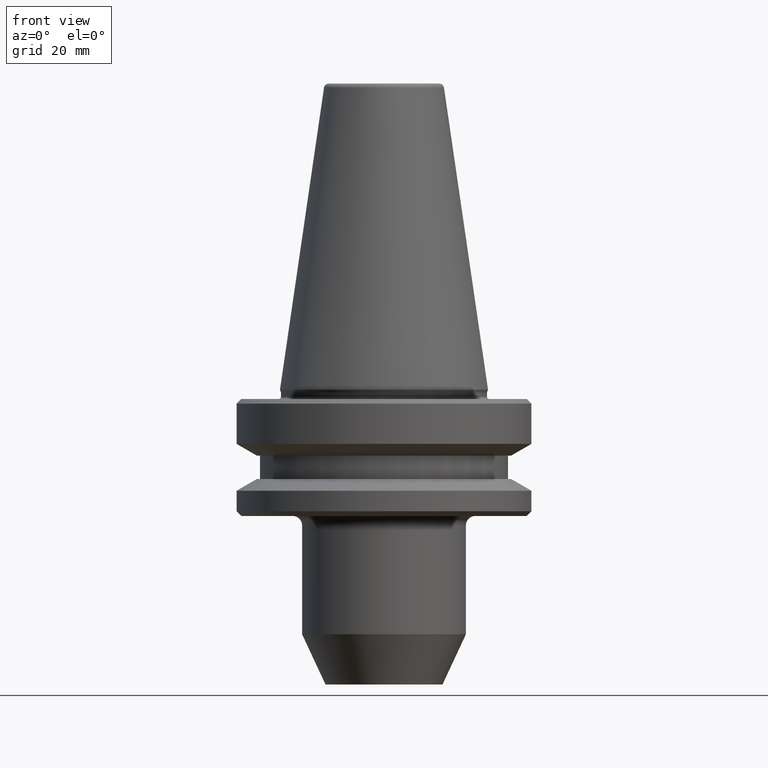
[diagram: clean part render]
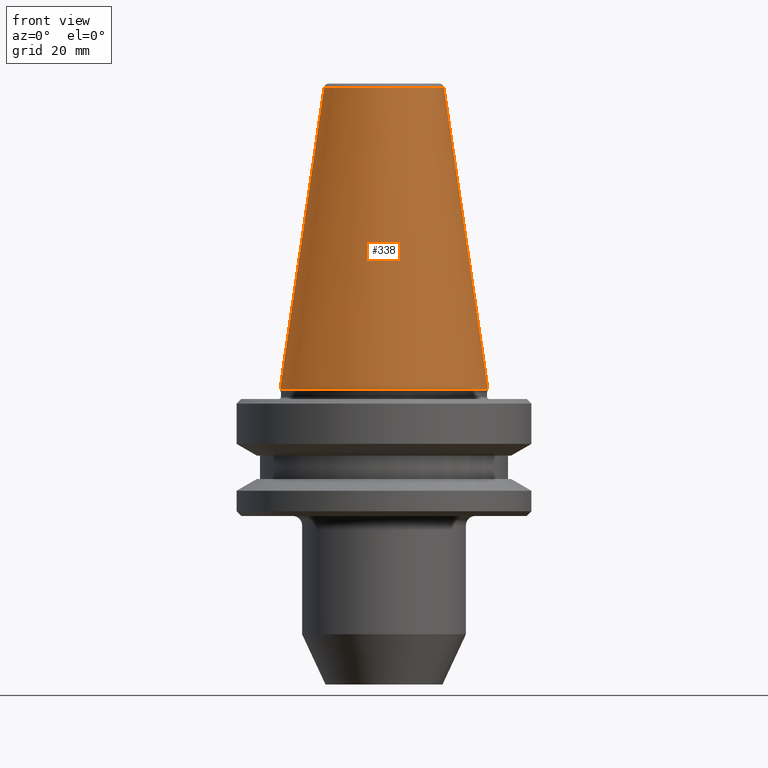
[diagram: same view with one face highlighted and labeled with its STEP entity id]
A machine part, front view. The second image highlights one B-rep face of the part: STEP entity #338.
In plain terms, the highlighted conical surface has half-angle 8.297 deg.
Its self-contained STEP definition (entity closure, byte-faithful):
#30 = DIRECTION ( 'NONE',  ( 1.000000000000000000, 0.0000000000000000000, 0.0000000000000000000 ) ) ;
#46 = EDGE_CURVE ( 'NONE', #670, #619, #971, .T. ) ;
#110 = AXIS2_PLACEMENT_3D ( 'NONE', #265, #913, #819 ) ;
#153 = CONICAL_SURFACE ( 'NONE', #110, 22.22499999999993700, 0.1448138077623203600 ) ;
#160 = ORIENTED_EDGE ( 'NONE', *, *, #751, .T. ) ;
#169 = ORIENTED_EDGE ( 'NONE', *, *, #46, .F. ) ;
#220 = ORIENTED_EDGE ( 'NONE', *, *, #534, .T. ) ;
#265 = CARTESIAN_POINT ( 'NONE',  ( 0.0000000000000000000, 0.0000000000000000000, 0.0000000000000000000 ) ) ;
#293 = EDGE_LOOP ( 'NONE', ( #448, #169, #220, #160 ) ) ;
#295 = CARTESIAN_POINT ( 'NONE',  ( -22.22499999999993700, 0.0000000000000000000, 0.0000000000000000000 ) ) ;
#304 = VECTOR ( 'NONE', #353, 1000.000000000000000 ) ;
#338 = ADVANCED_FACE ( 'NONE', ( #834 ), #153, .T. ) ;
#339 = DIRECTION ( 'NONE',  ( -0.0000000000000000000, -0.0000000000000000000, 1.000000000000000000 ) ) ;
#351 = CARTESIAN_POINT ( 'NONE',  ( 0.0000000000000000000, 0.0000000000000000000, 64.54430818888884900 ) ) ;
#353 = DIRECTION ( 'NONE',  ( -0.1443081888881801200, 0.0000000000000000000, -0.9895327920891825400 ) ) ;
#368 = LINE ( 'NONE', #998, #1017 ) ;
#412 = CARTESIAN_POINT ( 'NONE',  ( 0.0000000000000000000, 0.0000000000000000000, 0.0000000000000000000 ) ) ;
#447 = CARTESIAN_POINT ( 'NONE',  ( -12.81220206925727500, 1.569042225414501800E-015, 64.54430818888884900 ) ) ;
#448 = ORIENTED_EDGE ( 'NONE', *, *, #988, .F. ) ;
#463 = DIRECTION ( 'NONE',  ( 1.000000000000000000, 0.0000000000000000000, 0.0000000000000000000 ) ) ;
#505 = DIRECTION ( 'NONE',  ( 0.1443081888881801200, 1.767265616126614100E-017, -0.9895327920891825400 ) ) ;
#534 = EDGE_CURVE ( 'NONE', #670, #766, #587, .T. ) ;
#587 = LINE ( 'NONE', #295, #304 ) ;
#619 = VERTEX_POINT ( 'NONE', #976 ) ;
#626 = CIRCLE ( 'NONE', #851, 22.22499999999993700 ) ;
#641 = DIRECTION ( 'NONE',  ( -0.0000000000000000000, -0.0000000000000000000, 1.000000000000000000 ) ) ;
#670 = VERTEX_POINT ( 'NONE', #447 ) ;
#711 = VERTEX_POINT ( 'NONE', #908 ) ;
#751 = EDGE_CURVE ( 'NONE', #766, #711, #626, .T. ) ;
#766 = VERTEX_POINT ( 'NONE', #767 ) ;
#767 = CARTESIAN_POINT ( 'NONE',  ( -22.22499999999993700, 2.721777511104985000E-015, 0.0000000000000000000 ) ) ;
#819 = DIRECTION ( 'NONE',  ( -1.000000000000000000, 0.0000000000000000000, 0.0000000000000000000 ) ) ;
#834 = FACE_OUTER_BOUND ( 'NONE', #293, .T. ) ;
#851 = AXIS2_PLACEMENT_3D ( 'NONE', #412, #641, #463 ) ;
#863 = AXIS2_PLACEMENT_3D ( 'NONE', #351, #339, #30 ) ;
#908 = CARTESIAN_POINT ( 'NONE',  ( 22.22499999999993700, 0.0000000000000000000, 0.0000000000000000000 ) ) ;
#913 = DIRECTION ( 'NONE',  ( 0.0000000000000000000, 0.0000000000000000000, -1.000000000000000000 ) ) ;
#971 = CIRCLE ( 'NONE', #863, 12.81220206925726000 ) ;
#976 = CARTESIAN_POINT ( 'NONE',  ( 12.81220206925727500, 0.0000000000000000000, 64.54430818888884900 ) ) ;
#988 = EDGE_CURVE ( 'NONE', #619, #711, #368, .T. ) ;
#998 = CARTESIAN_POINT ( 'NONE',  ( 22.22499999999993700, 2.721777511104985000E-015, 0.0000000000000000000 ) ) ;
#1017 = VECTOR ( 'NONE', #505, 1000.000000000000000 ) ;